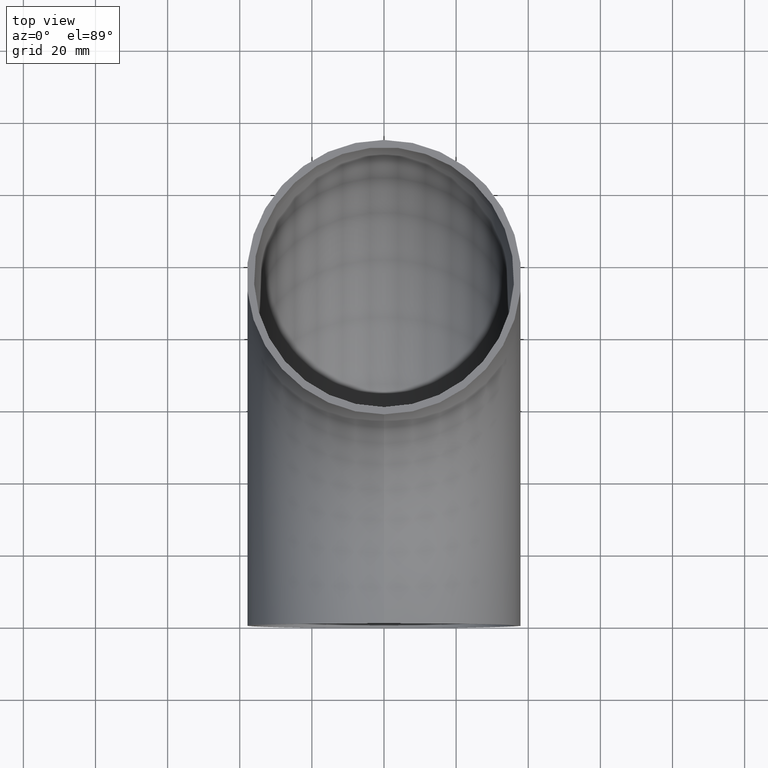
[diagram: clean part render]
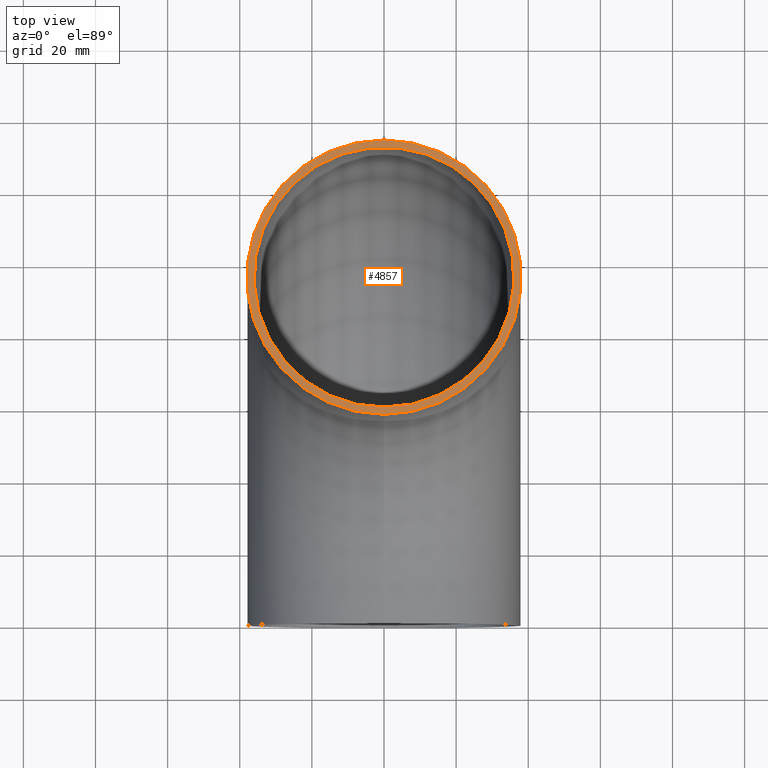
[diagram: same view with one face highlighted and labeled with its STEP entity id]
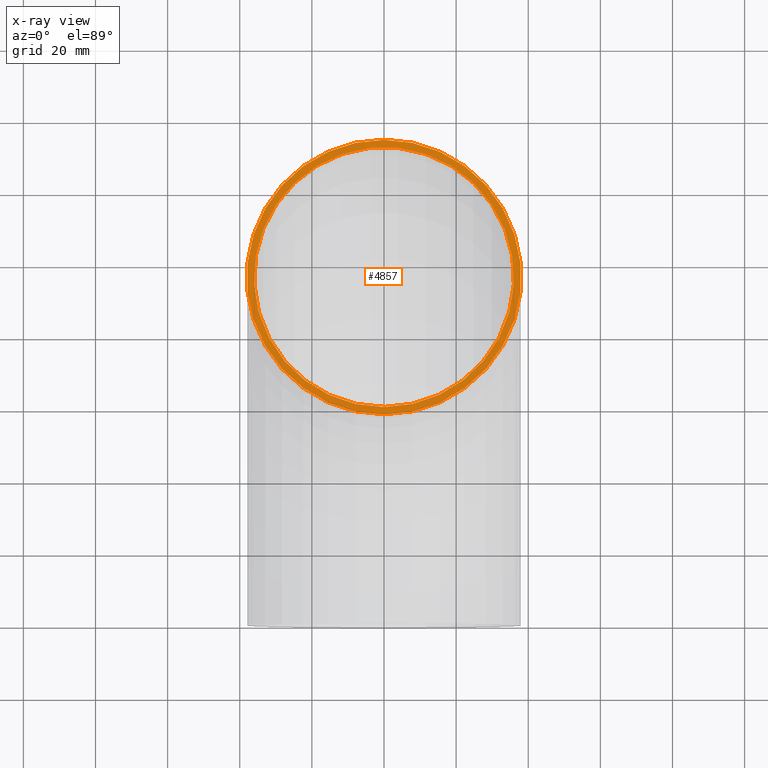
[diagram: x-ray of the same camera — body ghosted, the highlighted face saturated]
A machine part, top view. The second image highlights one B-rep face of the part: STEP entity #4857.
The next image is the same camera in x-ray: the body ghosted, the highlighted face saturated — about 0% of this face is hidden behind the body in this view.
In plain terms, the highlighted planar face has unit normal (0, -0, 1).
Its self-contained STEP definition (entity closure, byte-faithful):
#64 = EDGE_LOOP ( 'NONE', ( #108 ) ) ;
#108 = ORIENTED_EDGE ( 'NONE', *, *, #121, .F. ) ;
#121 = EDGE_CURVE ( 'NONE', #2008, #2008, #10336, .T. ) ;
#1146 = CARTESIAN_POINT ( 'NONE',  ( 0.000000000000000000, 56.95000000000000995, 9.158258489908444919E-15 ) ) ;
#1878 = DIRECTION ( 'NONE',  ( 0.000000000000000000, -1.608122649676636601E-16, 1.000000000000000000 ) ) ;
#2008 = VERTEX_POINT ( 'NONE', #3031 ) ;
#2237 = EDGE_LOOP ( 'NONE', ( #8721 ) ) ;
#3031 = CARTESIAN_POINT ( 'NONE',  ( 0.000000000000000000, 58.95000000000000284, 9.479883019843773964E-15 ) ) ;
#3978 = DIRECTION ( 'NONE',  ( 0.000000000000000000, -1.000000000000000000, -1.608122649676636601E-16 ) ) ;
#4191 = FACE_BOUND ( 'NONE', #64, .T. ) ;
#4207 = CIRCLE ( 'NONE', #10098, 38.04999999999999005 ) ;
#4857 = ADVANCED_FACE ( 'NONE', ( #4191, #9839 ), #7603, .T. ) ;
#5414 = DIRECTION ( 'NONE',  ( 0.000000000000000000, -1.000000000000000000, -1.608122649676636354E-16 ) ) ;
#5687 = AXIS2_PLACEMENT_3D ( 'NONE', #9164, #6510, #3978 ) ;
#6255 = CARTESIAN_POINT ( 'NONE',  ( 0.000000000000000000, 95.00000000000000000, 1.527716517192804842E-14 ) ) ;
#6510 = DIRECTION ( 'NONE',  ( 0.000000000000000000, -1.608122649676636601E-16, 1.000000000000000000 ) ) ;
#7233 = AXIS2_PLACEMENT_3D ( 'NONE', #6255, #1878, #5414 ) ;
#7603 = PLANE ( 'NONE',  #5687 ) ;
#7679 = CARTESIAN_POINT ( 'NONE',  ( 0.000000000000000000, 95.00000000000000000, 1.527716517192804842E-14 ) ) ;
#8721 = ORIENTED_EDGE ( 'NONE', *, *, #10208, .T. ) ;
#9164 = CARTESIAN_POINT ( 'NONE',  ( 0.000000000000000000, 95.00000000000000000, 1.527716517192804842E-14 ) ) ;
#9839 = FACE_OUTER_BOUND ( 'NONE', #2237, .T. ) ;
#10098 = AXIS2_PLACEMENT_3D ( 'NONE', #7679, #11308, #11224 ) ;
#10208 = EDGE_CURVE ( 'NONE', #11101, #11101, #4207, .T. ) ;
#10336 = CIRCLE ( 'NONE', #7233, 36.04999999999999716 ) ;
#11101 = VERTEX_POINT ( 'NONE', #1146 ) ;
#11224 = DIRECTION ( 'NONE',  ( 0.000000000000000000, -1.000000000000000000, -1.608122649676636847E-16 ) ) ;
#11308 = DIRECTION ( 'NONE',  ( 0.000000000000000000, -1.608122649676636601E-16, 1.000000000000000000 ) ) ;